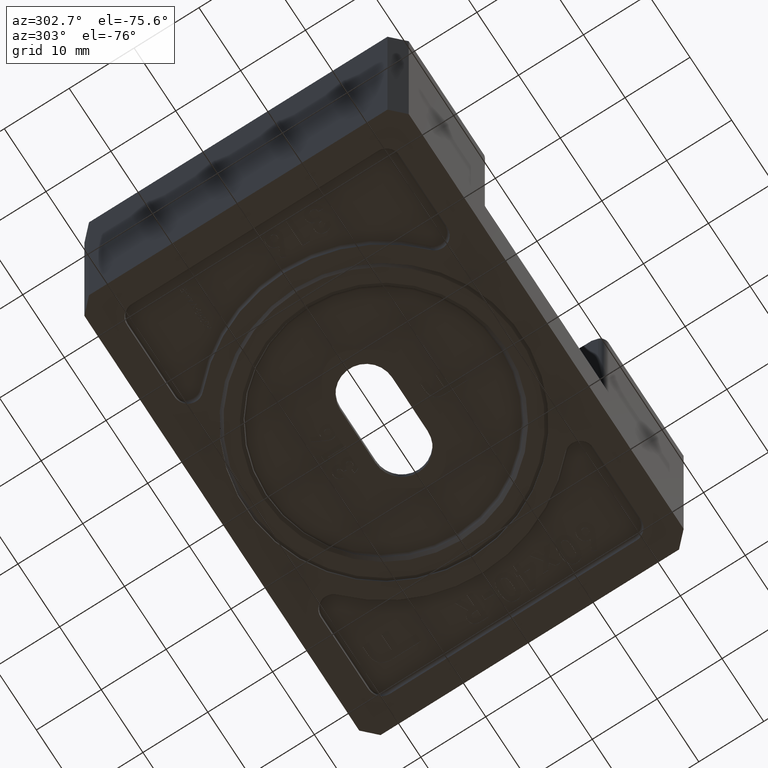
[diagram: clean part render]
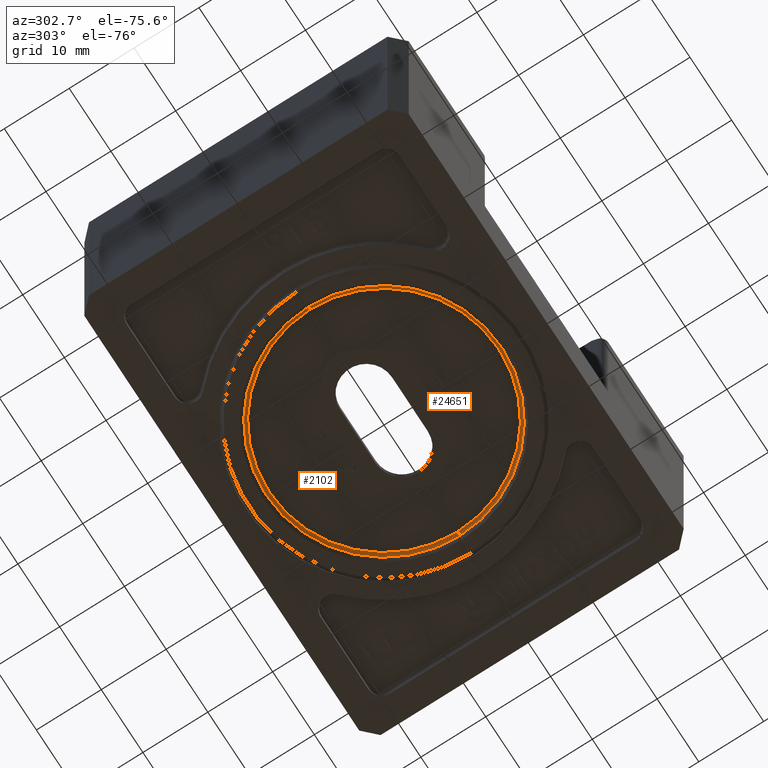
[diagram: same view with one multi-face feature highlighted, each face labeled with its STEP entity id]
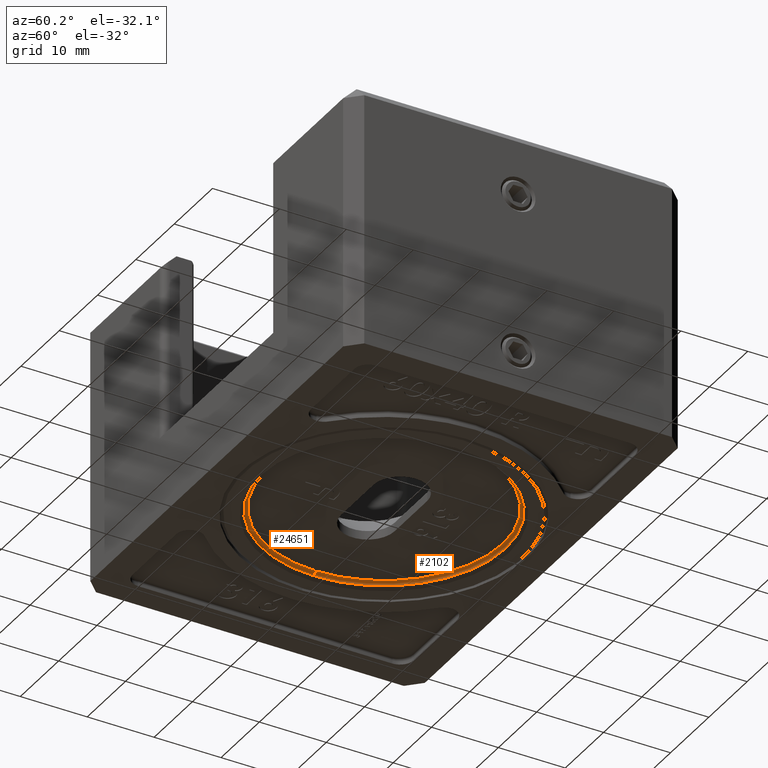
[diagram: same view with one multi-face feature highlighted, each face labeled with its STEP entity id]
A machine part, auxiliary view. The highlighted faces form ONE feature: a constant-radius fillet chain: 2 tangent blend faces with common blend radius 0.5 mm. The faces share edges in the B-rep.
A second angle (auxiliary view) of the same feature is appended — it is thin or edge-on in the first view.
Their STEP definitions:
[1] entity #2102 (Torus):
#240 = CARTESIAN_POINT ( 'NONE',  ( 18.19999999999999900, 2.228857174448182900E-015, -4.500000000000003600 ) ) ;
#259 = DIRECTION ( 'NONE',  ( 0.0000000000000000000, 0.0000000000000000000, -1.000000000000000000 ) ) ;
#340 = DIRECTION ( 'NONE',  ( -0.0000000000000000000, -1.000000000000000000, -0.0000000000000000000 ) ) ;
#847 = EDGE_CURVE ( 'NONE', #3744, #9121, #18975, .T. ) ;
#987 = VERTEX_POINT ( 'NONE', #20813 ) ;
#1061 = ORIENTED_EDGE ( 'NONE', *, *, #847, .T. ) ;
#2034 = ORIENTED_EDGE ( 'NONE', *, *, #6847, .F. ) ;
#2102 = ADVANCED_FACE ( 'NONE', ( #23191 ), #7318, .F. ) ;
#2719 = AXIS2_PLACEMENT_3D ( 'NONE', #13913, #340, #259 ) ;
#3395 = AXIS2_PLACEMENT_3D ( 'NONE', #15208, #3915, #14156 ) ;
#3744 = VERTEX_POINT ( 'NONE', #7411 ) ;
#3892 = EDGE_LOOP ( 'NONE', ( #2034, #18299, #1061, #8827 ) ) ;
#3915 = DIRECTION ( 'NONE',  ( 0.0000000000000000000, 0.0000000000000000000, -1.000000000000000000 ) ) ;
#4746 = AXIS2_PLACEMENT_3D ( 'NONE', #11765, #23502, #17566 ) ;
#5186 = CARTESIAN_POINT ( 'NONE',  ( 0.0000000000000000000, 0.0000000000000000000, -4.000000000000003600 ) ) ;
#5897 = EDGE_CURVE ( 'NONE', #7745, #9121, #20640, .T. ) ;
#6370 = AXIS2_PLACEMENT_3D ( 'NONE', #19721, #18355, #11622 ) ;
#6847 = EDGE_CURVE ( 'NONE', #987, #7745, #16349, .T. ) ;
#7318 = TOROIDAL_SURFACE ( 'NONE', #3395, 17.69999999999999900, 0.5000000000000000000 ) ;
#7411 = CARTESIAN_POINT ( 'NONE',  ( -17.69999999999999900, 0.0000000000000000000, -4.000000000000003600 ) ) ;
#7745 = VERTEX_POINT ( 'NONE', #240 ) ;
#8827 = ORIENTED_EDGE ( 'NONE', *, *, #5897, .F. ) ;
#9121 = VERTEX_POINT ( 'NONE', #24059 ) ;
#11622 = DIRECTION ( 'NONE',  ( -1.000000000000000000, -1.224646799147349500E-016, 0.0000000000000000000 ) ) ;
#11765 = CARTESIAN_POINT ( 'NONE',  ( 0.0000000000000000000, 0.0000000000000000000, -4.500000000000003600 ) ) ;
#13913 = CARTESIAN_POINT ( 'NONE',  ( -17.69999999999999900, 0.0000000000000000000, -4.500000000000003600 ) ) ;
#14156 = DIRECTION ( 'NONE',  ( -1.000000000000000000, 0.0000000000000000000, 0.0000000000000000000 ) ) ;
#15208 = CARTESIAN_POINT ( 'NONE',  ( 0.0000000000000000000, 0.0000000000000000000, -4.500000000000003600 ) ) ;
#16349 = CIRCLE ( 'NONE', #6370, 0.5000000000000004400 ) ;
#17566 = DIRECTION ( 'NONE',  ( -1.000000000000000000, 0.0000000000000000000, 0.0000000000000000000 ) ) ;
#18299 = ORIENTED_EDGE ( 'NONE', *, *, #24862, .F. ) ;
#18355 = DIRECTION ( 'NONE',  ( -1.224646799147353200E-016, 1.000000000000000000, 0.0000000000000000000 ) ) ;
#18975 = CIRCLE ( 'NONE', #2719, 0.5000000000000004400 ) ;
#19721 = CARTESIAN_POINT ( 'NONE',  ( 17.69999999999999900, 2.167624834490815400E-015, -4.500000000000003600 ) ) ;
#19972 = CIRCLE ( 'NONE', #24539, 17.69999999999999900 ) ;
#20640 = CIRCLE ( 'NONE', #4746, 18.19999999999999900 ) ;
#20813 = CARTESIAN_POINT ( 'NONE',  ( 17.69999999999999900, 2.198241004469499100E-015, -4.000000000000003600 ) ) ;
#20828 = DIRECTION ( 'NONE',  ( -1.000000000000000000, 0.0000000000000000000, 0.0000000000000000000 ) ) ;
#23191 = FACE_OUTER_BOUND ( 'NONE', #3892, .T. ) ;
#23502 = DIRECTION ( 'NONE',  ( -0.0000000000000000000, -0.0000000000000000000, 1.000000000000000000 ) ) ;
#24059 = CARTESIAN_POINT ( 'NONE',  ( -18.19999999999999900, 0.0000000000000000000, -4.500000000000003600 ) ) ;
#24539 = AXIS2_PLACEMENT_3D ( 'NONE', #5186, #24903, #20828 ) ;
#24862 = EDGE_CURVE ( 'NONE', #3744, #987, #19972, .T. ) ;
#24903 = DIRECTION ( 'NONE',  ( 0.0000000000000000000, 0.0000000000000000000, -1.000000000000000000 ) ) ;
[2] entity #24651 (Torus):
#240 = CARTESIAN_POINT ( 'NONE',  ( 18.19999999999999900, 2.228857174448182900E-015, -4.500000000000003600 ) ) ;
#259 = DIRECTION ( 'NONE',  ( 0.0000000000000000000, 0.0000000000000000000, -1.000000000000000000 ) ) ;
#340 = DIRECTION ( 'NONE',  ( -0.0000000000000000000, -1.000000000000000000, -0.0000000000000000000 ) ) ;
#847 = EDGE_CURVE ( 'NONE', #3744, #9121, #18975, .T. ) ;
#987 = VERTEX_POINT ( 'NONE', #20813 ) ;
#1451 = EDGE_CURVE ( 'NONE', #987, #3744, #5778, .T. ) ;
#1585 = DIRECTION ( 'NONE',  ( -1.000000000000000000, 0.0000000000000000000, 0.0000000000000000000 ) ) ;
#2719 = AXIS2_PLACEMENT_3D ( 'NONE', #13913, #340, #259 ) ;
#3315 = ORIENTED_EDGE ( 'NONE', *, *, #1451, .F. ) ;
#3744 = VERTEX_POINT ( 'NONE', #7411 ) ;
#4920 = AXIS2_PLACEMENT_3D ( 'NONE', #10603, #24388, #10864 ) ;
#5293 = TOROIDAL_SURFACE ( 'NONE', #4920, 17.69999999999999900, 0.5000000000000000000 ) ;
#5778 = CIRCLE ( 'NONE', #22346, 17.69999999999999900 ) ;
#6370 = AXIS2_PLACEMENT_3D ( 'NONE', #19721, #18355, #11622 ) ;
#6847 = EDGE_CURVE ( 'NONE', #987, #7745, #16349, .T. ) ;
#7411 = CARTESIAN_POINT ( 'NONE',  ( -17.69999999999999900, 0.0000000000000000000, -4.000000000000003600 ) ) ;
#7447 = FACE_OUTER_BOUND ( 'NONE', #18323, .T. ) ;
#7745 = VERTEX_POINT ( 'NONE', #240 ) ;
#7821 = CARTESIAN_POINT ( 'NONE',  ( 0.0000000000000000000, 0.0000000000000000000, -4.500000000000003600 ) ) ;
#9121 = VERTEX_POINT ( 'NONE', #24059 ) ;
#10603 = CARTESIAN_POINT ( 'NONE',  ( 0.0000000000000000000, 0.0000000000000000000, -4.500000000000003600 ) ) ;
#10864 = DIRECTION ( 'NONE',  ( -1.000000000000000000, 0.0000000000000000000, 0.0000000000000000000 ) ) ;
#11622 = DIRECTION ( 'NONE',  ( -1.000000000000000000, -1.224646799147349500E-016, 0.0000000000000000000 ) ) ;
#11789 = AXIS2_PLACEMENT_3D ( 'NONE', #7821, #23348, #25291 ) ;
#13262 = CARTESIAN_POINT ( 'NONE',  ( 0.0000000000000000000, 0.0000000000000000000, -4.000000000000003600 ) ) ;
#13817 = EDGE_CURVE ( 'NONE', #9121, #7745, #20372, .T. ) ;
#13841 = ORIENTED_EDGE ( 'NONE', *, *, #6847, .T. ) ;
#13913 = CARTESIAN_POINT ( 'NONE',  ( -17.69999999999999900, 0.0000000000000000000, -4.500000000000003600 ) ) ;
#15420 = DIRECTION ( 'NONE',  ( 0.0000000000000000000, 0.0000000000000000000, -1.000000000000000000 ) ) ;
#16349 = CIRCLE ( 'NONE', #6370, 0.5000000000000004400 ) ;
#18323 = EDGE_LOOP ( 'NONE', ( #3315, #13841, #23372, #24016 ) ) ;
#18355 = DIRECTION ( 'NONE',  ( -1.224646799147353200E-016, 1.000000000000000000, 0.0000000000000000000 ) ) ;
#18975 = CIRCLE ( 'NONE', #2719, 0.5000000000000004400 ) ;
#19721 = CARTESIAN_POINT ( 'NONE',  ( 17.69999999999999900, 2.167624834490815400E-015, -4.500000000000003600 ) ) ;
#20372 = CIRCLE ( 'NONE', #11789, 18.19999999999999900 ) ;
#20813 = CARTESIAN_POINT ( 'NONE',  ( 17.69999999999999900, 2.198241004469499100E-015, -4.000000000000003600 ) ) ;
#22346 = AXIS2_PLACEMENT_3D ( 'NONE', #13262, #15420, #1585 ) ;
#23348 = DIRECTION ( 'NONE',  ( -0.0000000000000000000, -0.0000000000000000000, 1.000000000000000000 ) ) ;
#23372 = ORIENTED_EDGE ( 'NONE', *, *, #13817, .F. ) ;
#24016 = ORIENTED_EDGE ( 'NONE', *, *, #847, .F. ) ;
#24059 = CARTESIAN_POINT ( 'NONE',  ( -18.19999999999999900, 0.0000000000000000000, -4.500000000000003600 ) ) ;
#24388 = DIRECTION ( 'NONE',  ( 0.0000000000000000000, 0.0000000000000000000, -1.000000000000000000 ) ) ;
#24651 = ADVANCED_FACE ( 'NONE', ( #7447 ), #5293, .F. ) ;
#25291 = DIRECTION ( 'NONE',  ( -1.000000000000000000, 0.0000000000000000000, 0.0000000000000000000 ) ) ;